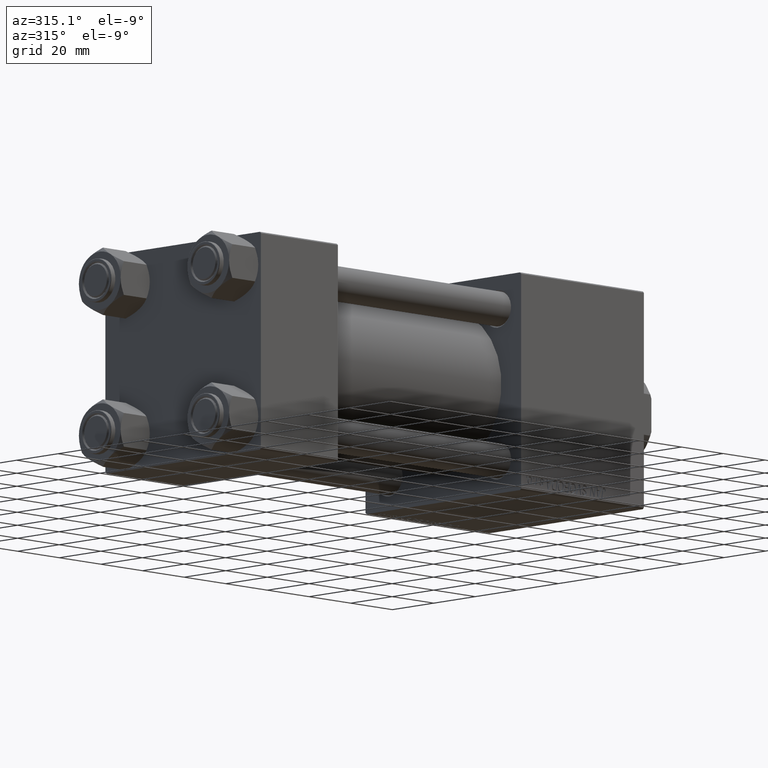
[diagram: clean part render]
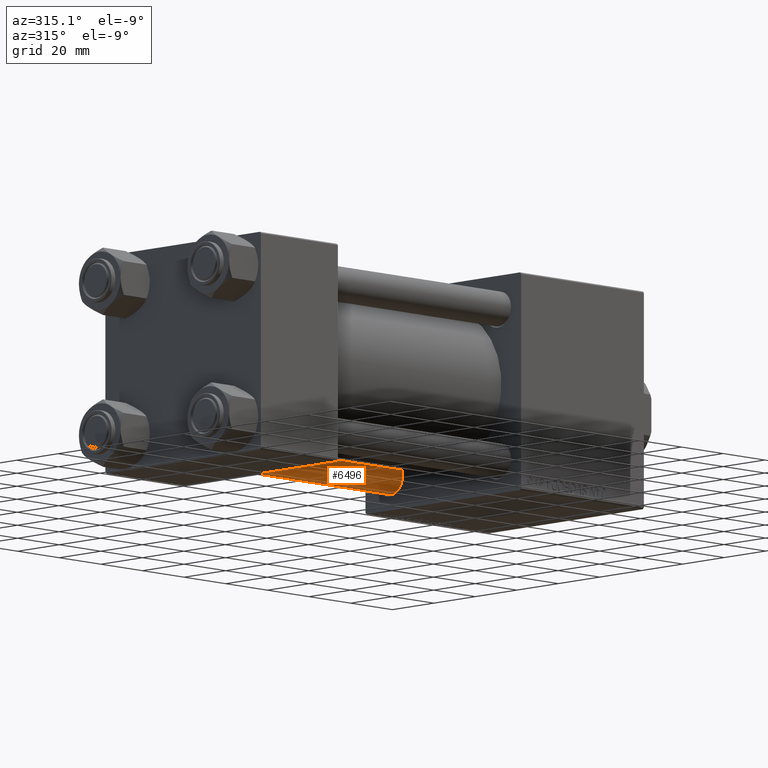
[diagram: same view with one face highlighted and labeled with its STEP entity id]
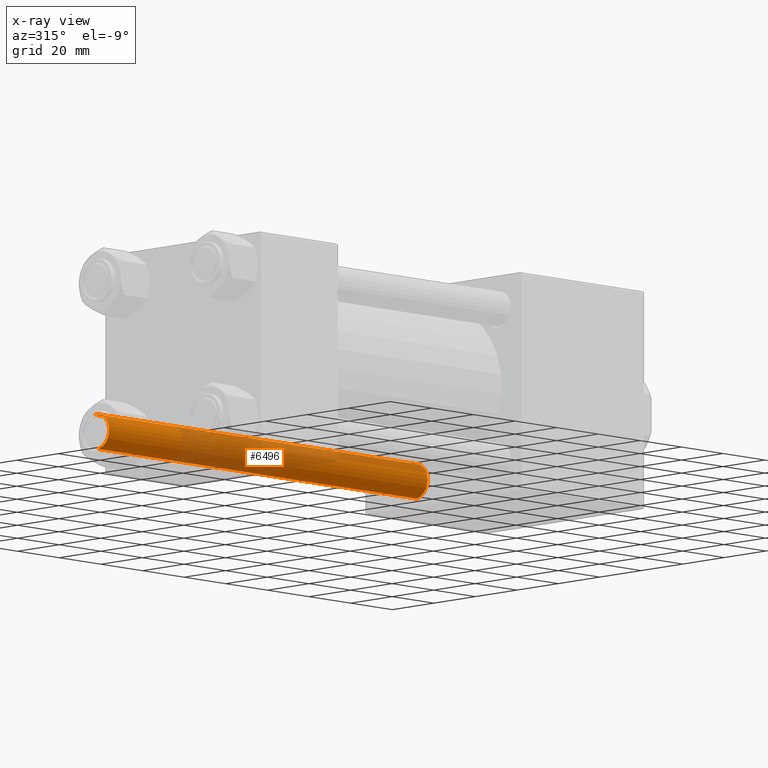
[diagram: x-ray of the same camera — body ghosted, the highlighted face saturated]
A machine part, auxiliary view. The second image highlights one B-rep face of the part: STEP entity #6496.
The next image is the same camera in x-ray: the body ghosted, the highlighted face saturated — about 46% of this face is hidden behind the body in this view.
In plain terms, the highlighted cylindrical surface (edge-blend (fillet) strip) has radius 6 mm, axis along (1, -0, 0).
Its self-contained STEP definition (entity closure, byte-faithful):
#696 = CYLINDRICAL_SURFACE ( 'NONE', #9594, 6.000000000000000888 ) ;
#1446 = DIRECTION ( 'NONE',  ( -1.000000000000000000, 0.000000000000000000, 0.000000000000000000 ) ) ;
#5533 = DIRECTION ( 'NONE',  ( -0.000000000000000000, -0.000000000000000000, -1.000000000000000000 ) ) ;
#6172 = CARTESIAN_POINT ( 'NONE',  ( -6.000000000000000888, 0.000000000000000000, 153.5000000000000000 ) ) ;
#6496 = ADVANCED_FACE ( 'NONE', ( #47112 ), #696, .T. ) ;
#7266 = CARTESIAN_POINT ( 'NONE',  ( 6.000000000000000888, 7.347880794884120722E-16, 153.5000000000000000 ) ) ;
#8611 = CARTESIAN_POINT ( 'NONE',  ( 0.000000000000000000, 0.000000000000000000, 154.0000000000000000 ) ) ;
#9594 = AXIS2_PLACEMENT_3D ( 'NONE', #8611, #40925, #1446 ) ;
#11879 = ORIENTED_EDGE ( 'NONE', *, *, #14540, .T. ) ;
#12022 = ORIENTED_EDGE ( 'NONE', *, *, #26171, .F. ) ;
#13263 = CARTESIAN_POINT ( 'NONE',  ( -6.000000000000000888, 0.000000000000000000, 0.5000000000000281997 ) ) ;
#14540 = EDGE_CURVE ( 'NONE', #27581, #29484, #43254, .T. ) ;
#15460 = DIRECTION ( 'NONE',  ( 0.000000000000000000, 0.000000000000000000, -1.000000000000000000 ) ) ;
#15740 = CIRCLE ( 'NONE', #43428, 6.000000000000000888 ) ;
#15833 = CARTESIAN_POINT ( 'NONE',  ( -6.000000000000000888, 0.000000000000000000, 154.0000000000000000 ) ) ;
#15923 = VERTEX_POINT ( 'NONE', #7266 ) ;
#17950 = LINE ( 'NONE', #41166, #23930 ) ;
#18149 = VECTOR ( 'NONE', #31375, 1000.000000000000000 ) ;
#19343 = VERTEX_POINT ( 'NONE', #6172 ) ;
#21192 = CARTESIAN_POINT ( 'NONE',  ( 0.000000000000000000, 0.000000000000000000, 153.5000000000000000 ) ) ;
#22364 = DIRECTION ( 'NONE',  ( 1.000000000000000000, 0.000000000000000000, 0.000000000000000000 ) ) ;
#23930 = VECTOR ( 'NONE', #5533, 1000.000000000000000 ) ;
#24289 = EDGE_CURVE ( 'NONE', #19343, #27581, #39005, .T. ) ;
#24450 = EDGE_CURVE ( 'NONE', #15923, #19343, #15740, .T. ) ;
#26171 = EDGE_CURVE ( 'NONE', #15923, #29484, #17950, .T. ) ;
#27581 = VERTEX_POINT ( 'NONE', #13263 ) ;
#29484 = VERTEX_POINT ( 'NONE', #35196 ) ;
#30524 = CARTESIAN_POINT ( 'NONE',  ( 0.000000000000000000, 0.000000000000000000, 0.5000000000000281997 ) ) ;
#31375 = DIRECTION ( 'NONE',  ( -0.000000000000000000, -0.000000000000000000, -1.000000000000000000 ) ) ;
#35196 = CARTESIAN_POINT ( 'NONE',  ( 6.000000000000000888, 7.347880794884120722E-16, 0.5000000000000281997 ) ) ;
#36220 = ORIENTED_EDGE ( 'NONE', *, *, #24450, .T. ) ;
#39005 = LINE ( 'NONE', #15833, #18149 ) ;
#40734 = EDGE_LOOP ( 'NONE', ( #12022, #36220, #42304, #11879 ) ) ;
#40925 = DIRECTION ( 'NONE',  ( -0.000000000000000000, -0.000000000000000000, -1.000000000000000000 ) ) ;
#41166 = CARTESIAN_POINT ( 'NONE',  ( 6.000000000000000888, 7.347880794884120722E-16, 154.0000000000000000 ) ) ;
#41599 = AXIS2_PLACEMENT_3D ( 'NONE', #30524, #42010, #22364 ) ;
#42010 = DIRECTION ( 'NONE',  ( -0.000000000000000000, -0.000000000000000000, 1.000000000000000000 ) ) ;
#42304 = ORIENTED_EDGE ( 'NONE', *, *, #24289, .T. ) ;
#43234 = DIRECTION ( 'NONE',  ( 1.000000000000000000, 0.000000000000000000, 0.000000000000000000 ) ) ;
#43254 = CIRCLE ( 'NONE', #41599, 6.000000000000000888 ) ;
#43428 = AXIS2_PLACEMENT_3D ( 'NONE', #21192, #15460, #43234 ) ;
#47112 = FACE_OUTER_BOUND ( 'NONE', #40734, .T. ) ;